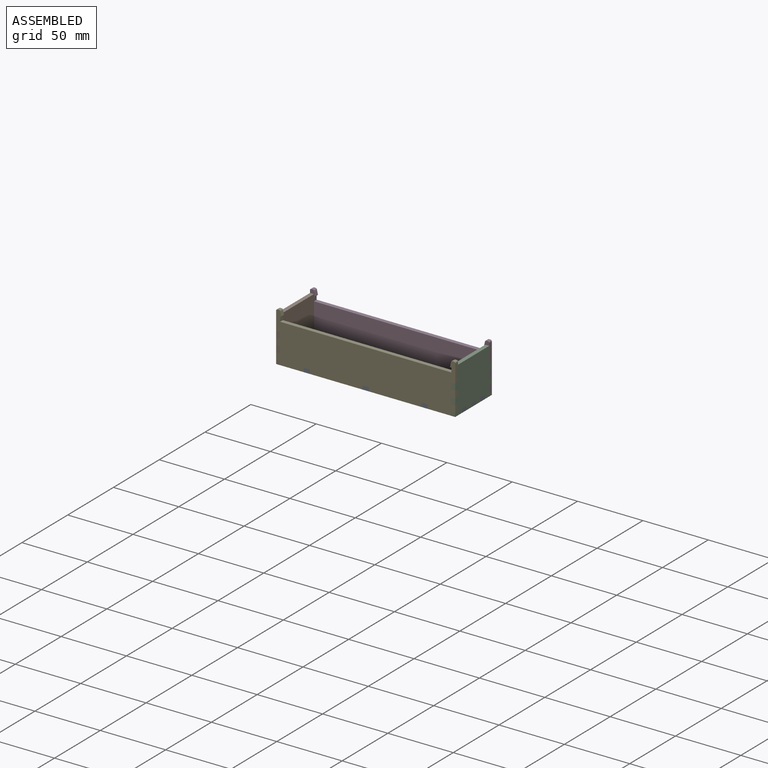
[diagram: assembled view]
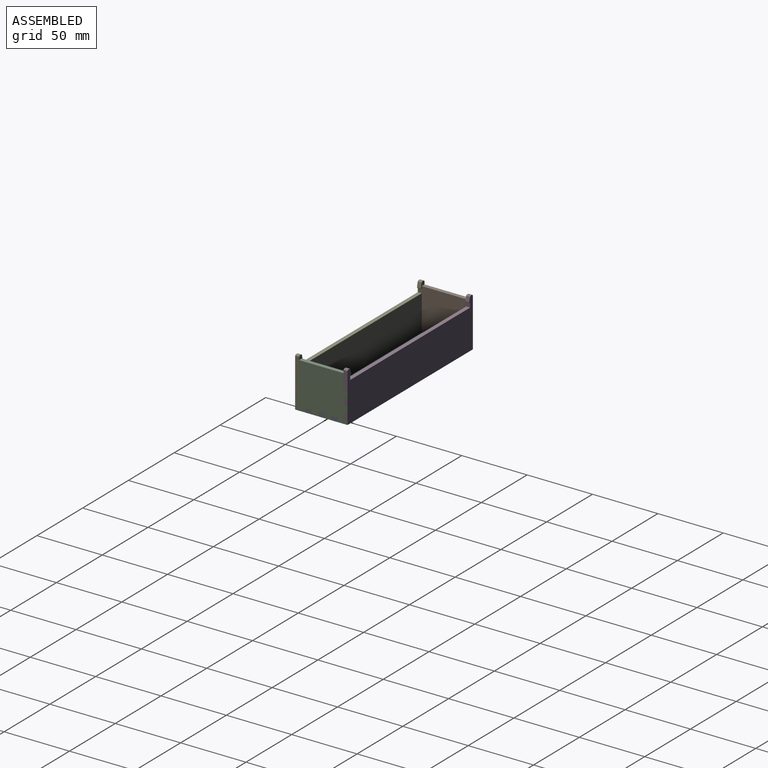
[diagram: assembled view, second angle]
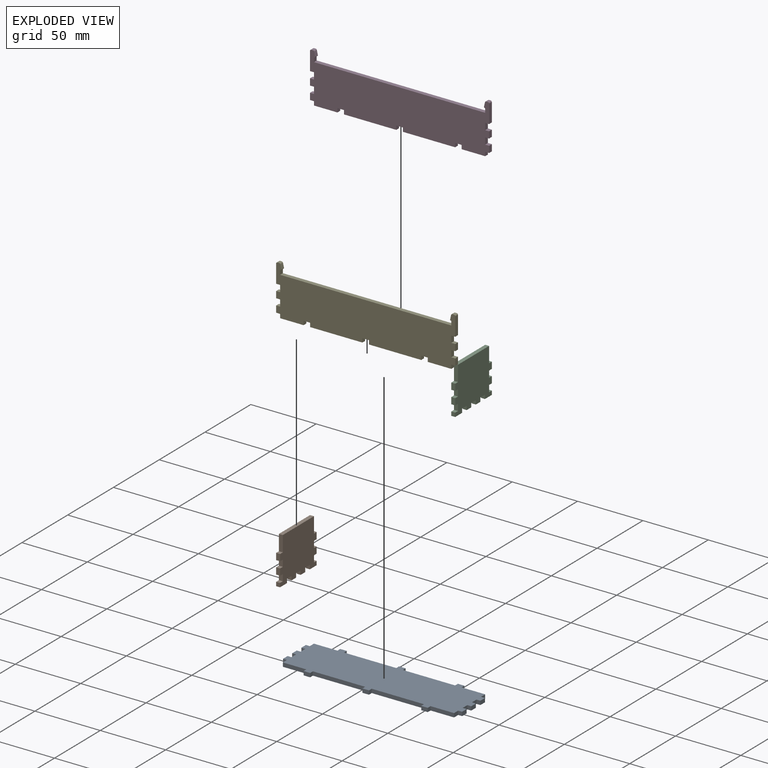
[diagram: exploded view]
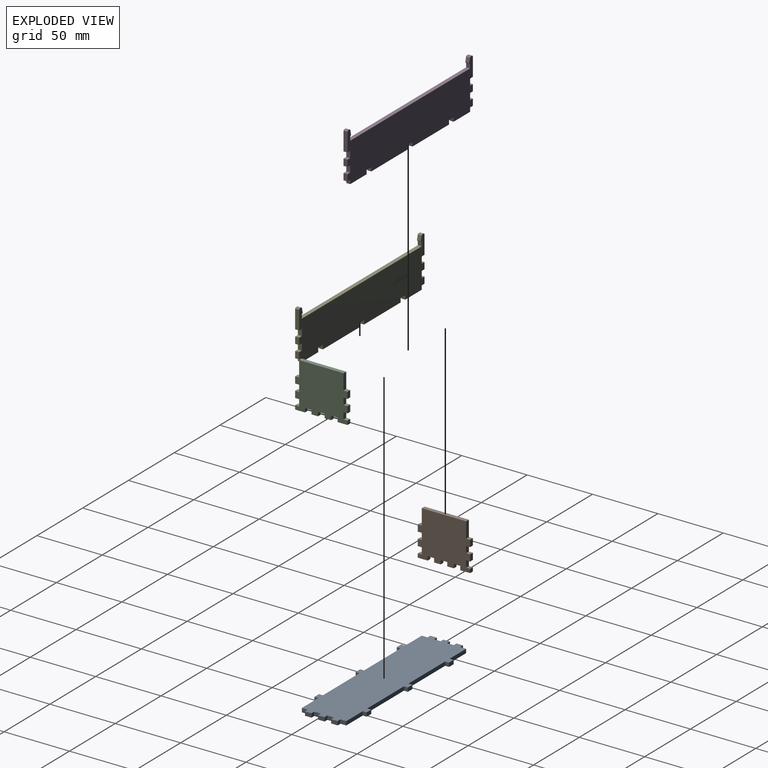
[diagram: exploded view, second angle]
ASSEMBLY  parts=5 mates=4
PART A: 54 faces, bbox 137x40x3 mm
  f0: plane 3x3mm, normal (1,0,0), area 9mm2, adj f1,f51,f52,f53
  f1: plane 18x3mm, normal (0,-1,0), area 54mm2, adj f0,f2,f52,f53
  f2: plane 4.5x3mm, normal (1,0,0), area 13.5mm2, adj f1,f3,f52,f53
  f3: plane 3x3mm, normal (0,-1,0), area 9mm2, adj f2,f4,f52,f53
  f4: plane 5x3mm, normal (1,0,0), area 15mm2, adj f3,f5,f52,f53
  f5: plane 3x3mm, normal (0,1,0), area 9mm2, adj f4,f6,f52,f53
  f6: plane 5x3mm, normal (1,0,0), area 15mm2, adj f5,f7,f52,f53
  f7: plane 3x3mm, normal (0,-1,0), area 9mm2, adj f6,f8,f52,f53
  f8: plane 5x3mm, normal (1,0,0), area 15mm2, adj f7,f9,f52,f53
  f9: plane 3x3mm, normal (0,1,0), area 9mm2, adj f8,f10,f52,f53
  f10: plane 5x3mm, normal (1,0,0), area 15mm2, adj f9,f11,f52,f53
  f11: plane 3x3mm, normal (0,-1,0), area 9mm2, adj f10,f12,f52,f53
  f12: plane 5x3mm, normal (1,0,0), area 15mm2, adj f11,f13,f52,f53
  f13: plane 3x3mm, normal (0,1,0), area 9mm2, adj f12,f14,f52,f53
  f14: plane 4.5x3mm, normal (1,0,0), area 13.5mm2, adj f13,f15,f52,f53
  f15: plane 18x3mm, normal (0,1,0), area 54mm2, adj f14,f16,f52,f53
  f16: plane 3x3mm, normal (1,0,0), area 9mm2, adj f15,f17,f52,f53
  f17: plane 5x3mm, normal (0,1,0), area 15mm2, adj f16,f18,f52,f53
  f18: plane 3x3mm, normal (-1,0,0), area 9mm2, adj f17,f19,f52,f53
  f19: plane 40x3mm, normal (0,1,0), area 120mm2, adj f18,f20,f52,f53
  f20: plane 3x3mm, normal (1,0,0), area 9mm2, adj f19,f21,f52,f53
  f21: plane 5x3mm, normal (0,1,0), area 15mm2, adj f20,f22,f52,f53
  f22: plane 3x3mm, normal (-1,0,0), area 9mm2, adj f21,f23,f52,f53
  f23: plane 40x3mm, normal (0,1,0), area 120mm2, adj f22,f24,f52,f53
  f24: plane 3x3mm, normal (1,0,0), area 9mm2, adj f23,f25,f52,f53
  f25: plane 5x3mm, normal (0,1,0), area 15mm2, adj f24,f26,f52,f53
  f26: plane 3x3mm, normal (-1,0,0), area 9mm2, adj f25,f27,f52,f53
  f27: plane 18x3mm, normal (0,1,0), area 54mm2, adj f26,f28,f52,f53
  f28: plane 4.5x3mm, normal (-1,0,0), area 13.5mm2, adj f27,f29,f52,f53
  f29: plane 3x3mm, normal (0,1,0), area 9mm2, adj f28,f30,f52,f53
  f30: plane 5x3mm, normal (-1,0,0), area 15mm2, adj f29,f31,f52,f53
  f31: plane 3x3mm, normal (0,-1,0), area 9mm2, adj f30,f32,f52,f53
  f32: plane 5x3mm, normal (-1,0,0), area 15mm2, adj f31,f33,f52,f53
  f33: plane 3x3mm, normal (0,1,0), area 9mm2, adj f32,f34,f52,f53
  f34: plane 5x3mm, normal (-1,0,0), area 15mm2, adj f33,f35,f52,f53
  f35: plane 3x3mm, normal (0,-1,0), area 9mm2, adj f34,f36,f52,f53
  f36: plane 5x3mm, normal (-1,0,0), area 15mm2, adj f35,f37,f52,f53
  f37: plane 3x3mm, normal (0,1,0), area 9mm2, adj f36,f38,f52,f53
  f38: plane 5x3mm, normal (-1,0,0), area 15mm2, adj f37,f39,f52,f53
  f39: plane 3x3mm, normal (0,-1,0), area 9mm2, adj f38,f40,f52,f53
  f40: plane 4.5x3mm, normal (-1,0,0), area 13.5mm2, adj f39,f41,f52,f53
  f41: plane 18x3mm, normal (0,-1,0), area 54mm2, adj f40,f42,f52,f53
  f42: plane 3x3mm, normal (-1,0,0), area 9mm2, adj f41,f43,f52,f53
  f43: plane 5x3mm, normal (0,-1,0), area 15mm2, adj f42,f44,f52,f53
  f44: plane 3x3mm, normal (1,0,0), area 9mm2, adj f43,f45,f52,f53
  f45: plane 40x3mm, normal (0,-1,0), area 120mm2, adj f44,f46,f52,f53
  f46: plane 3x3mm, normal (-1,0,0), area 9mm2, adj f45,f47,f52,f53
  f47: plane 5x3mm, normal (0,-1,0), area 15mm2, adj f46,f48,f52,f53
  f48: plane 3x3mm, normal (1,0,0), area 9mm2, adj f47,f49,f52,f53
  f49: plane 40x3mm, normal (0,-1,0), area 120mm2, adj f48,f50,f52,f53
  f50: plane 3x3mm, normal (-1,0,0), area 9mm2, adj f49,f51,f52,f53
  f51: plane 5x3mm, normal (0,-1,0), area 15mm2, adj f0,f50,f52,f53
  f52: plane 137x40mm, normal (0,0,1), area 4634mm2, adj f0,f1,f2,f3,f4,f5,f6,f7
  f53: plane 137x40mm, normal (0,0,-1), area 4634mm2, adj f0,f1,f2,f3,f4,f5,f6,f7
PART B: 38 faces, bbox 35x40x3 mm
  f0: plane 5x3mm, normal (1,0,0), area 15mm2, adj f1,f35,f36,f37
  f1: plane 3x3mm, normal (0,-1,0), area 9mm2, adj f0,f2,f36,f37
  f2: plane 5x3mm, normal (1,0,0), area 15mm2, adj f1,f3,f36,f37
  f3: plane 3x3mm, normal (0,1,0), area 9mm2, adj f2,f4,f36,f37
  f4: plane 5x3mm, normal (1,0,0), area 15mm2, adj f3,f5,f36,f37
  f5: plane 3x3mm, normal (0,-1,0), area 9mm2, adj f4,f6,f36,f37
  f6: plane 7.5x3mm, normal (1,0,0), area 22.5mm2, adj f5,f7,f36,f37
  f7: plane 3x3mm, normal (0,1,0), area 9mm2, adj f6,f8,f36,f37
  f8: plane 3x3mm, normal (-1,0,0), area 9mm2, adj f7,f9,f36,f37
  f9: plane 5x3mm, normal (0,1,0), area 15mm2, adj f8,f10,f36,f37
  f10: plane 3x3mm, normal (1,0,0), area 9mm2, adj f9,f11,f36,f37
  f11: plane 5x3mm, normal (0,1,0), area 15mm2, adj f10,f12,f36,f37
  f12: plane 3x3mm, normal (-1,0,0), area 9mm2, adj f11,f13,f36,f37
  f13: plane 5x3mm, normal (0,1,0), area 15mm2, adj f12,f14,f36,f37
  f14: plane 3x3mm, normal (1,0,0), area 9mm2, adj f13,f15,f36,f37
  f15: plane 5x3mm, normal (0,1,0), area 15mm2, adj f14,f16,f36,f37
  f16: plane 3x3mm, normal (-1,0,0), area 9mm2, adj f15,f17,f36,f37
  f17: plane 12x3mm, normal (0,1,0), area 36mm2, adj f16,f18,f36,f37
  f18: plane 34x3mm, normal (-1,0,0), area 102mm2, adj f17,f19,f36,f37
  f19: plane 12x3mm, normal (0,-1,0), area 36mm2, adj f18,f20,f36,f37
  f20: plane 3x3mm, normal (-1,0,0), area 9mm2, adj f19,f21,f36,f37
  f21: plane 5x3mm, normal (0,-1,0), area 15mm2, adj f20,f22,f36,f37
  f22: plane 3x3mm, normal (1,0,0), area 9mm2, adj f21,f23,f36,f37
  f23: plane 5x3mm, normal (0,-1,0), area 15mm2, adj f22,f24,f36,f37
  f24: plane 3x3mm, normal (-1,0,0), area 9mm2, adj f23,f25,f36,f37
  f25: plane 5x3mm, normal (0,-1,0), area 15mm2, adj f24,f26,f36,f37
  f26: plane 3x3mm, normal (1,0,0), area 9mm2, adj f25,f27,f36,f37
  f27: plane 5x3mm, normal (0,-1,0), area 15mm2, adj f26,f28,f36,f37
  f28: plane 3x3mm, normal (-1,0,0), area 9mm2, adj f27,f29,f36,f37
  f29: plane 3x3mm, normal (0,-1,0), area 9mm2, adj f28,f30,f36,f37
  f30: plane 7.5x3mm, normal (1,0,0), area 22.5mm2, adj f29,f31,f36,f37
  f31: plane 3x3mm, normal (0,1,0), area 9mm2, adj f30,f32,f36,f37
  f32: plane 5x3mm, normal (1,0,0), area 15mm2, adj f31,f33,f36,f37
  f33: plane 3x3mm, normal (0,-1,0), area 9mm2, adj f32,f34,f36,f37
  f34: plane 5x3mm, normal (1,0,0), area 15mm2, adj f33,f35,f36,f37
  f35: plane 3x3mm, normal (0,1,0), area 9mm2, adj f0,f34,f36,f37
  f36: plane 40x35mm, normal (0,0,1), area 1223mm2, adj f0,f1,f2,f3,f4,f5,f6,f7
  f37: plane 40x35mm, normal (0,0,-1), area 1223mm2, adj f0,f1,f2,f3,f4,f5,f6,f7
PART C: same geometry as B
PART D: 52 faces, bbox 137x38x3 mm
  f0: plane 3.1x3mm, normal (1,0,0), area 9.3mm2, adj f1,f49,f50,f51
  f1: plane 131x3mm, normal (0,-1,0), area 393mm2, adj f0,f2,f50,f51
  f2: plane 3.1x3mm, normal (-1,0,0), area 9.3mm2, adj f1,f3,f50,f51
  f3: plane 3x0.61mm, normal (-0.37,0.93,0), area 2mm2, adj f2,f4,f50,f51
  f4: cylinder r=0.5mm len=3mm, axis (0,0,-1), area 2.1mm2, adj f3,f5,f50,f51
  f5: plane 3.3x3mm, normal (-0.98,-0.22,0), area 10.1mm2, adj f4,f6,f50,f51
  f6: cylinder r=1mm len=3mm, axis (0,0,-1), area 4.1mm2, adj f5,f7,f50,f51
  f7: plane 3x1.2mm, normal (0,-1,0), area 3.6mm2, adj f6,f8,f50,f51
  f8: cylinder r=1mm len=3mm, axis (0,0,-1), area 4.7mm2, adj f7,f9,f50,f51
  f9: plane 14x3mm, normal (1,0,0), area 42mm2, adj f8,f10,f50,f51
  f10: plane 3x3mm, normal (0,1,0), area 9mm2, adj f9,f11,f50,f51
  f11: plane 5x3mm, normal (1,0,0), area 15mm2, adj f10,f12,f50,f51
  f12: plane 3x3mm, normal (0,-1,0), area 9mm2, adj f11,f13,f50,f51
  f13: plane 5x3mm, normal (1,0,0), area 15mm2, adj f12,f14,f50,f51
  f14: plane 3x3mm, normal (0,1,0), area 9mm2, adj f13,f15,f50,f51
  f15: plane 5x3mm, normal (1,0,0), area 15mm2, adj f14,f16,f50,f51
  f16: plane 3x3mm, normal (0,-1,0), area 9mm2, adj f15,f17,f50,f51
  f17: plane 5x3mm, normal (1,0,0), area 15mm2, adj f16,f18,f50,f51
  f18: plane 3x3mm, normal (0,1,0), area 9mm2, adj f17,f19,f50,f51
  f19: plane 3x3mm, normal (1,0,0), area 9mm2, adj f18,f20,f50,f51
  f20: plane 18x3mm, normal (0,1,0), area 54mm2, adj f19,f21,f50,f51
  f21: plane 3x3mm, normal (-1,0,0), area 9mm2, adj f20,f22,f50,f51
  f22: plane 5x3mm, normal (0,1,0), area 15mm2, adj f21,f23,f50,f51
  f23: plane 3x3mm, normal (1,0,0), area 9mm2, adj f22,f24,f50,f51
  f24: plane 40x3mm, normal (0,1,0), area 120mm2, adj f23,f25,f50,f51
  f25: plane 3x3mm, normal (-1,0,0), area 9mm2, adj f24,f26,f50,f51
  f26: plane 5x3mm, normal (0,1,0), area 15mm2, adj f25,f27,f50,f51
  f27: plane 3x3mm, normal (1,0,0), area 9mm2, adj f26,f28,f50,f51
  f28: plane 40x3mm, normal (0,1,0), area 120mm2, adj f27,f29,f50,f51
  f29: plane 3x3mm, normal (-1,0,0), area 9mm2, adj f28,f30,f50,f51
  f30: plane 5x3mm, normal (0,1,0), area 15mm2, adj f29,f31,f50,f51
  f31: plane 3x3mm, normal (1,0,0), area 9mm2, adj f30,f32,f50,f51
  f32: plane 18x3mm, normal (0,1,0), area 54mm2, adj f31,f33,f50,f51
  f33: plane 3x3mm, normal (-1,0,0), area 9mm2, adj f32,f34,f50,f51
  f34: plane 3x3mm, normal (0,1,0), area 9mm2, adj f33,f35,f50,f51
  f35: plane 5x3mm, normal (-1,0,0), area 15mm2, adj f34,f36,f50,f51
  f36: plane 3x3mm, normal (0,-1,0), area 9mm2, adj f35,f37,f50,f51
  f37: plane 5x3mm, normal (-1,0,0), area 15mm2, adj f36,f38,f50,f51
  f38: plane 3x3mm, normal (0,1,0), area 9mm2, adj f37,f39,f50,f51
  f39: plane 5x3mm, normal (-1,0,0), area 15mm2, adj f38,f40,f50,f51
  f40: plane 3x3mm, normal (0,-1,0), area 9mm2, adj f39,f41,f50,f51
  f41: plane 5x3mm, normal (-1,0,0), area 15mm2, adj f40,f42,f50,f51
  f42: plane 3x3mm, normal (0,1,0), area 9mm2, adj f41,f43,f50,f51
  f43: plane 14x3mm, normal (-1,0,0), area 42mm2, adj f42,f44,f50,f51
  f44: cylinder r=1mm len=3mm, axis (0,0,-1), area 4.7mm2, adj f43,f45,f50,f51
  f45: plane 3x1.2mm, normal (0,-1,0), area 3.6mm2, adj f44,f46,f50,f51
  f46: cylinder r=1mm len=3mm, axis (0,0,-1), area 4.1mm2, adj f45,f47,f50,f51
  f47: plane 3.3x3mm, normal (0.98,-0.22,0), area 10.1mm2, adj f46,f48,f50,f51
  f48: cylinder r=0.5mm len=3mm, axis (0,0,-1), area 2.1mm2, adj f47,f49,f50,f51
  f49: plane 3x0.61mm, normal (0.37,0.93,0), area 2mm2, adj f0,f48,f50,f51
  f50: plane 137x38mm, normal (0,0,1), area 4039.1mm2, adj f0,f1,f2,f3,f4,f5,f6,f7
  f51: plane 137x38mm, normal (0,0,-1), area 4039.1mm2, adj f0,f1,f2,f3,f4,f5,f6,f7
PART E: same geometry as D
PLACE A t=(26.85,-50.36,39.25)mm
PLACE B rot(axis=(0,1,0),90deg) t=(-210.71,-50.36,-208.31)mm
PLACE C rot(axis=(0,1,0),90deg) t=(-76.71,-50.36,-208.31)mm
PLACE D rot(axis=(-1,0,0),90deg) t=(26.85,-26.93,15.67)mm
PLACE E rot(axis=(-1,0,0),90deg) t=(26.85,-63.93,15.67)mm
MATE fastened E.f30 <-> A.f52  axis (0,0,-1) through (-187.21,-63.93,42.25)mm
MATE fastened C.f0 <-> A.f52  axis (0,0,-1) through (-73.71,-43.93,42.25)mm
MATE fastened B.f0 <-> A.f52  axis (0,0,-1) through (-210.71,-43.93,42.25)mm
MATE fastened D.f30 <-> A.f52  axis (0,0,-1) through (-187.21,-23.93,42.25)mm
